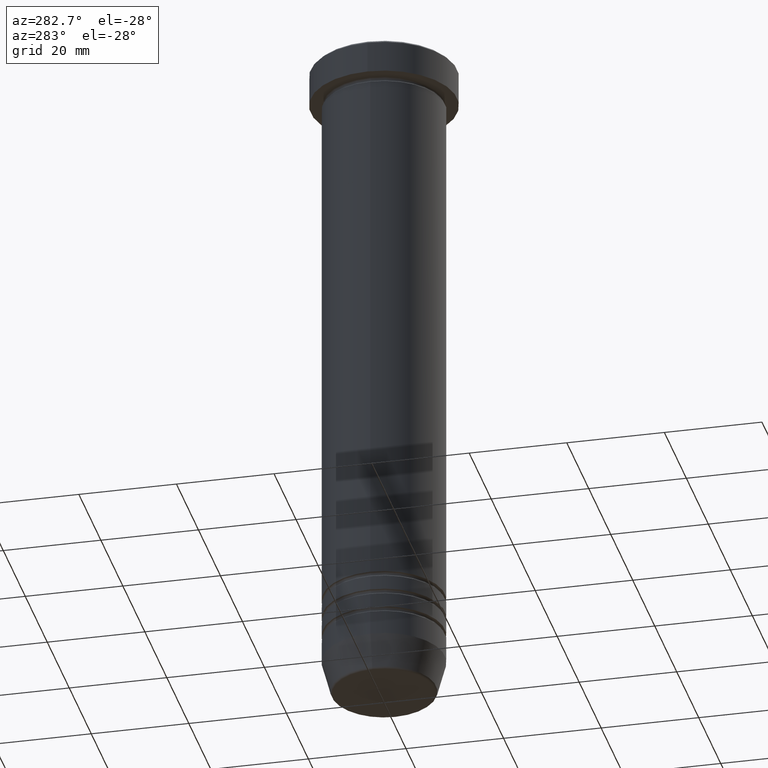
[diagram: clean part render]
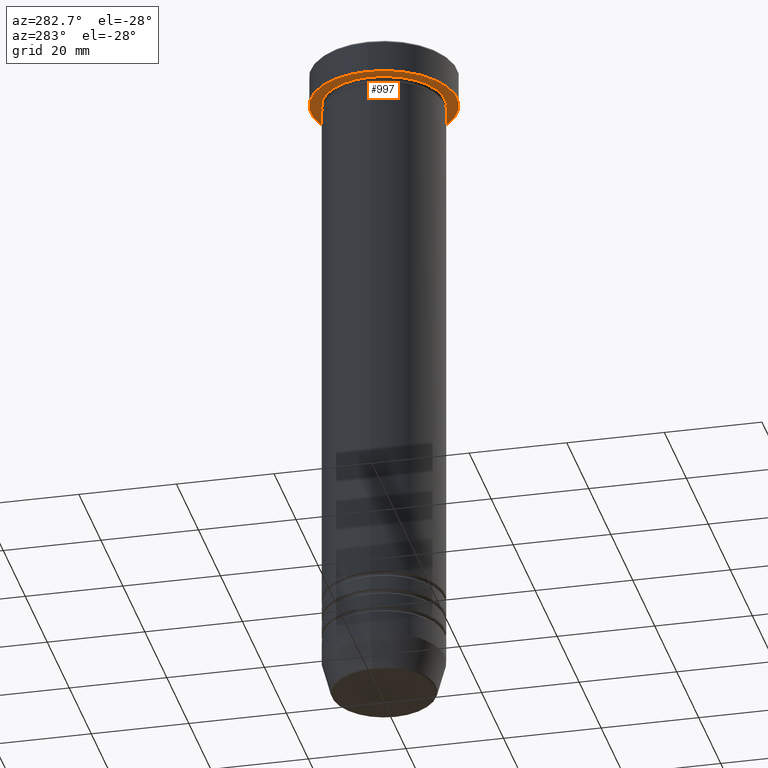
[diagram: same view with one face highlighted and labeled with its STEP entity id]
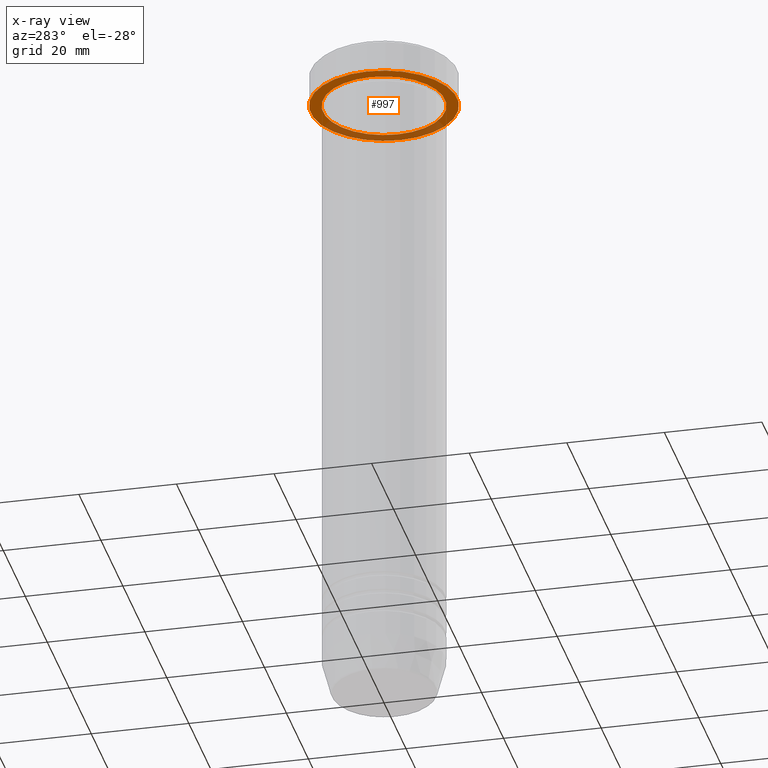
[diagram: x-ray of the same camera — body ghosted, the highlighted face saturated]
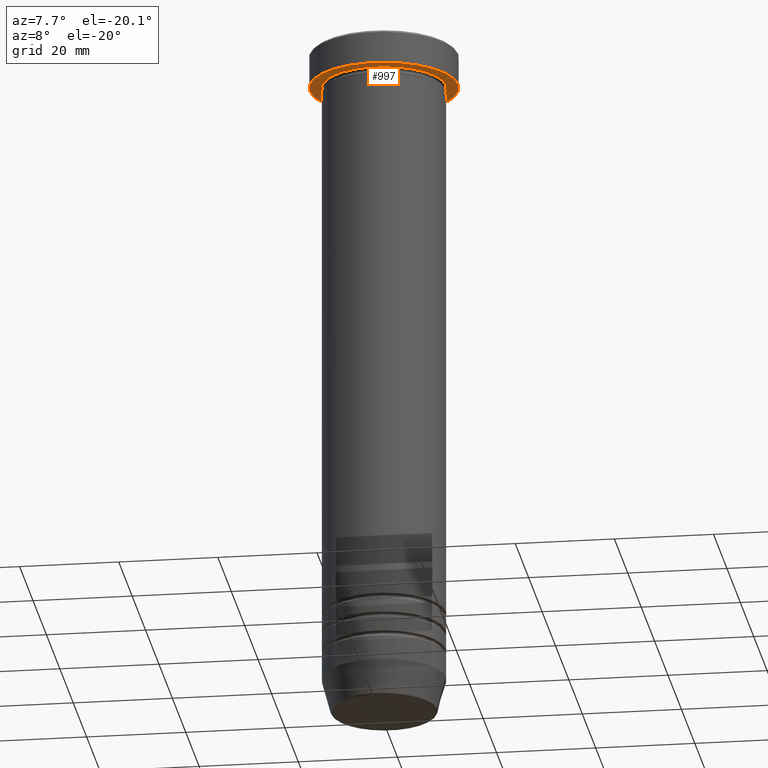
[diagram: same view with one face highlighted and labeled with its STEP entity id]
A machine part, auxiliary view. The second image highlights one B-rep face of the part: STEP entity #997.
The next image is the same camera in x-ray: the body ghosted, the highlighted face saturated — about 31% of this face is hidden behind the body in this view.
A second angle (auxiliary view) of the same face is appended — the face is thin or edge-on in the first view.
In plain terms, the highlighted planar face has unit normal (0, 0, -1).
Its self-contained STEP definition (entity closure, byte-faithful):
#10 = AXIS2_PLACEMENT_3D ( 'NONE', #135, #213, #457 ) ;
#23 = FACE_OUTER_BOUND ( 'NONE', #956, .T. ) ;
#35 = EDGE_CURVE ( 'NONE', #185, #601, #828, .T. ) ;
#39 = CIRCLE ( 'NONE', #386, 15.00000000000000000 ) ;
#99 = CARTESIAN_POINT ( 'NONE',  ( 0.000000000000000000, 0.000000000000000000, -6.999999999999999112 ) ) ;
#135 = CARTESIAN_POINT ( 'NONE',  ( 0.000000000000000000, 0.000000000000000000, -6.999999999999998224 ) ) ;
#185 = VERTEX_POINT ( 'NONE', #891 ) ;
#188 = AXIS2_PLACEMENT_3D ( 'NONE', #652, #344, #657 ) ;
#193 = DIRECTION ( 'NONE',  ( -0.000000000000000000, -0.000000000000000000, 1.000000000000000000 ) ) ;
#202 = DIRECTION ( 'NONE',  ( 1.000000000000000000, 0.000000000000000000, 0.000000000000000000 ) ) ;
#213 = DIRECTION ( 'NONE',  ( -0.000000000000000000, -0.000000000000000000, 1.000000000000000000 ) ) ;
#232 = VERTEX_POINT ( 'NONE', #761 ) ;
#254 = ORIENTED_EDGE ( 'NONE', *, *, #413, .F. ) ;
#274 = ORIENTED_EDGE ( 'NONE', *, *, #35, .F. ) ;
#302 = DIRECTION ( 'NONE',  ( -1.000000000000000000, 0.000000000000000000, 0.000000000000000000 ) ) ;
#313 = ORIENTED_EDGE ( 'NONE', *, *, #626, .T. ) ;
#319 = CARTESIAN_POINT ( 'NONE',  ( -15.00000000000000000, 1.836970198721029589E-15, -6.999999999999998224 ) ) ;
#332 = EDGE_CURVE ( 'NONE', #416, #232, #493, .T. ) ;
#336 = CIRCLE ( 'NONE', #943, 12.50000000000000000 ) ;
#344 = DIRECTION ( 'NONE',  ( 0.000000000000000000, 0.000000000000000000, -1.000000000000000000 ) ) ;
#365 = CARTESIAN_POINT ( 'NONE',  ( 0.000000000000000000, 0.000000000000000000, -6.999999999999998224 ) ) ;
#386 = AXIS2_PLACEMENT_3D ( 'NONE', #365, #1039, #202 ) ;
#392 = CARTESIAN_POINT ( 'NONE',  ( 0.000000000000000000, 0.000000000000000000, -6.999999999999999112 ) ) ;
#407 = DIRECTION ( 'NONE',  ( -0.000000000000000000, -0.000000000000000000, 1.000000000000000000 ) ) ;
#413 = EDGE_CURVE ( 'NONE', #601, #185, #39, .T. ) ;
#416 = VERTEX_POINT ( 'NONE', #441 ) ;
#441 = CARTESIAN_POINT ( 'NONE',  ( 12.50000000000000000, 1.530808498934191521E-15, -6.999999999999999112 ) ) ;
#457 = DIRECTION ( 'NONE',  ( 1.000000000000000000, 0.000000000000000000, 0.000000000000000000 ) ) ;
#493 = CIRCLE ( 'NONE', #768, 12.50000000000000000 ) ;
#502 = FACE_BOUND ( 'NONE', #883, .T. ) ;
#514 = DIRECTION ( 'NONE',  ( -1.000000000000000000, 0.000000000000000000, 0.000000000000000000 ) ) ;
#601 = VERTEX_POINT ( 'NONE', #319 ) ;
#626 = EDGE_CURVE ( 'NONE', #232, #416, #336, .T. ) ;
#652 = CARTESIAN_POINT ( 'NONE',  ( 0.000000000000000000, 15.00000000000000000, -6.999999999999999112 ) ) ;
#657 = DIRECTION ( 'NONE',  ( -1.000000000000000000, 0.000000000000000000, -0.000000000000000000 ) ) ;
#689 = ORIENTED_EDGE ( 'NONE', *, *, #332, .T. ) ;
#761 = CARTESIAN_POINT ( 'NONE',  ( -12.50000000000000000, 0.000000000000000000, -6.999999999999999112 ) ) ;
#768 = AXIS2_PLACEMENT_3D ( 'NONE', #99, #193, #514 ) ;
#828 = CIRCLE ( 'NONE', #10, 15.00000000000000000 ) ;
#883 = EDGE_LOOP ( 'NONE', ( #313, #689 ) ) ;
#891 = CARTESIAN_POINT ( 'NONE',  ( 15.00000000000000000, 0.000000000000000000, -6.999999999999998224 ) ) ;
#908 = PLANE ( 'NONE',  #188 ) ;
#943 = AXIS2_PLACEMENT_3D ( 'NONE', #392, #407, #302 ) ;
#956 = EDGE_LOOP ( 'NONE', ( #274, #254 ) ) ;
#997 = ADVANCED_FACE ( 'NONE', ( #502, #23 ), #908, .T. ) ;
#1039 = DIRECTION ( 'NONE',  ( -0.000000000000000000, -0.000000000000000000, 1.000000000000000000 ) ) ;